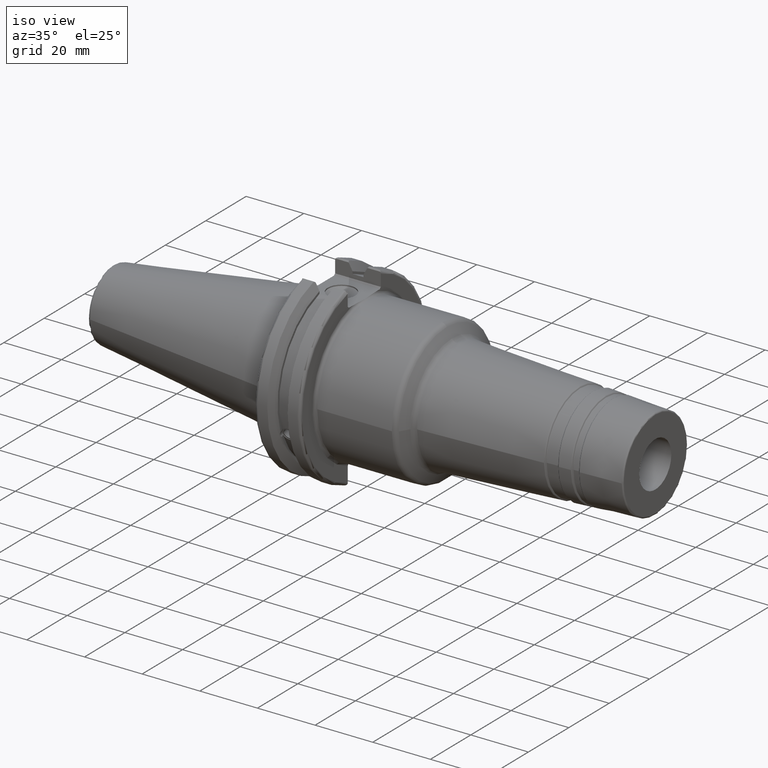
[diagram: clean part render]
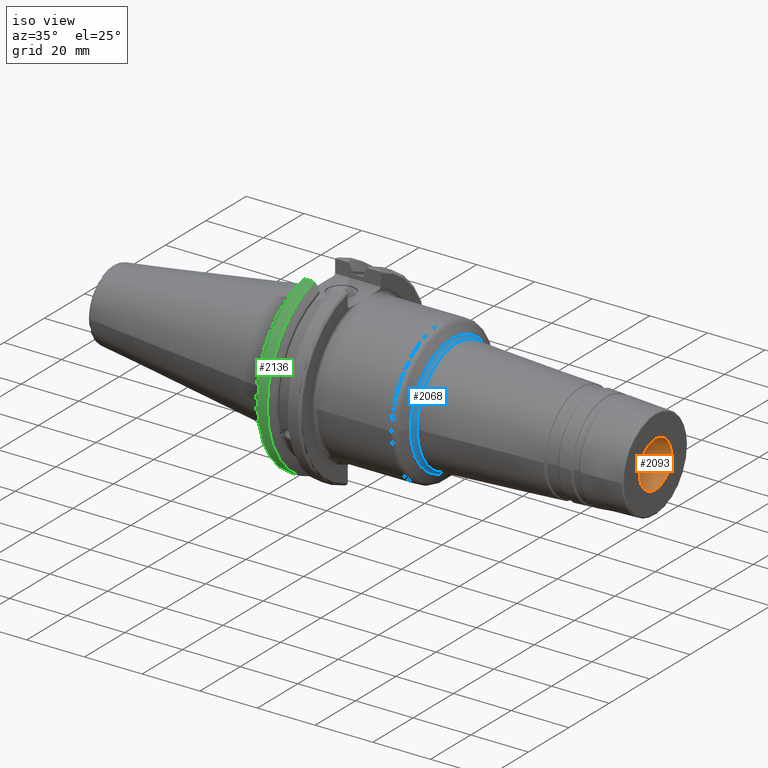
[diagram: same view with three faces highlighted in distinct colors, each labeled with its STEP entity id]
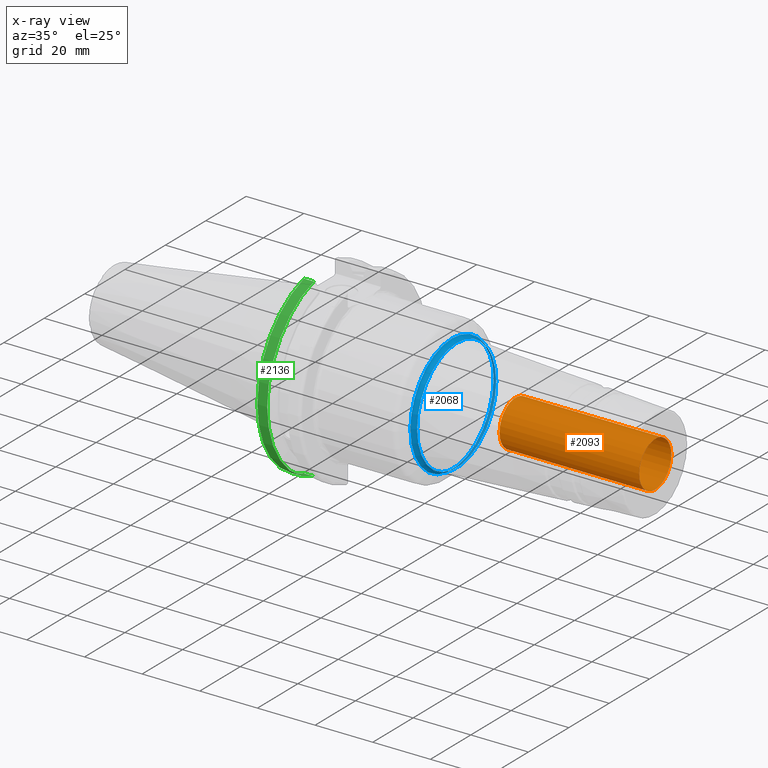
[diagram: x-ray of the same camera — body ghosted, the three highlighted faces saturated]
A machine part, iso view with three faces highlighted in distinct colors.
The next image is the same camera in x-ray (body ghosted, the three faces saturated) — at least one of them is partly hidden behind the body in this view.
Their STEP definitions:

[orange] entity #2093 — the highlighted cylindrical surface (bore or boss wall) has radius 7.9375 mm, axis along (1, 0, 0).
#156=CYLINDRICAL_SURFACE('',#2311,7.9375);
#212=FACE_OUTER_BOUND('',#321,.T.);
#321=EDGE_LOOP('',(#1584,#1585,#1586,#1587,#1588,#1589));
#433=LINE('',#3545,#532);
#532=VECTOR('',#2758,7.9375);
#643=CIRCLE('',#2237,7.9375);
#644=CIRCLE('',#2238,7.9375);
#699=CIRCLE('',#2312,7.9375);
#700=CIRCLE('',#2313,7.9375);
#819=VERTEX_POINT('',#3368);
#820=VERTEX_POINT('',#3369);
#875=VERTEX_POINT('',#3544);
#876=VERTEX_POINT('',#3546);
#1071=EDGE_CURVE('',#819,#820,#643,.T.);
#1072=EDGE_CURVE('',#820,#819,#644,.T.);
#1145=EDGE_CURVE('',#820,#875,#433,.T.);
#1146=EDGE_CURVE('',#876,#875,#699,.T.);
#1147=EDGE_CURVE('',#875,#876,#700,.T.);
#1584=ORIENTED_EDGE('',*,*,#1071,.T.);
#1585=ORIENTED_EDGE('',*,*,#1145,.T.);
#1586=ORIENTED_EDGE('',*,*,#1146,.F.);
#1587=ORIENTED_EDGE('',*,*,#1147,.F.);
#1588=ORIENTED_EDGE('',*,*,#1145,.F.);
#1589=ORIENTED_EDGE('',*,*,#1072,.T.);
#2093=ADVANCED_FACE('',(#212),#156,.F.);
#2237=AXIS2_PLACEMENT_3D('',#3370,#2593,#2594);
#2238=AXIS2_PLACEMENT_3D('',#3371,#2595,#2596);
#2311=AXIS2_PLACEMENT_3D('',#3543,#2756,#2757);
#2312=AXIS2_PLACEMENT_3D('',#3547,#2759,#2760);
#2313=AXIS2_PLACEMENT_3D('',#3548,#2761,#2762);
#2593=DIRECTION('center_axis',(1.,0.,0.));
#2594=DIRECTION('ref_axis',(0.,0.,-1.));
#2595=DIRECTION('center_axis',(1.,0.,0.));
#2596=DIRECTION('ref_axis',(0.,0.,-1.));
#2756=DIRECTION('center_axis',(1.,0.,0.));
#2757=DIRECTION('ref_axis',(0.,1.,0.));
#2758=DIRECTION('',(-1.,0.,0.));
#2759=DIRECTION('center_axis',(1.,0.,0.));
#2760=DIRECTION('ref_axis',(0.,0.,-1.));
#2761=DIRECTION('center_axis',(1.,0.,0.));
#2762=DIRECTION('ref_axis',(0.,0.,-1.));
#3368=CARTESIAN_POINT('',(120.,7.9375,0.));
#3369=CARTESIAN_POINT('',(120.,-7.9375,-9.72063396823212E-16));
#3370=CARTESIAN_POINT('Origin',(120.,0.,0.));
#3371=CARTESIAN_POINT('Origin',(120.,0.,0.));
#3543=CARTESIAN_POINT('Origin',(95.75,0.,0.));
#3544=CARTESIAN_POINT('',(71.5,-7.9375,-9.72063396823212E-16));
#3545=CARTESIAN_POINT('',(95.75,-7.9375,-9.72063396823212E-16));
#3546=CARTESIAN_POINT('',(71.5,7.9375,0.));
#3547=CARTESIAN_POINT('Origin',(71.5,0.,0.));
#3548=CARTESIAN_POINT('Origin',(71.5,0.,0.));

[blue] entity #2068 — the highlighted toroidal blend (fillet) surface has major radius 21.609 mm and minor (blend) radius 2 mm.
#85=TOROIDAL_SURFACE('',#2207,21.6089714078457,2.);
#187=FACE_OUTER_BOUND('',#295,.T.);
#295=EDGE_LOOP('',(#1394,#1395,#1396,#1397,#1398,#1399,#1400,#1401));
#620=CIRCLE('',#2208,20.6089714078457);
#621=CIRCLE('',#2209,2.);
#622=CIRCLE('',#2210,19.6117123383366);
#623=CIRCLE('',#2211,19.6117123383366);
#624=CIRCLE('',#2212,19.6117123383366);
#625=CIRCLE('',#2213,20.6089714078457);
#626=CIRCLE('',#2214,20.6089714078457);
#799=VERTEX_POINT('',#3316);
#800=VERTEX_POINT('',#3317);
#801=VERTEX_POINT('',#3319);
#802=VERTEX_POINT('',#3321);
#803=VERTEX_POINT('',#3323);
#804=VERTEX_POINT('',#3326);
#1045=EDGE_CURVE('',#799,#800,#620,.T.);
#1046=EDGE_CURVE('',#800,#801,#621,.T.);
#1047=EDGE_CURVE('',#801,#802,#622,.T.);
#1048=EDGE_CURVE('',#802,#803,#623,.T.);
#1049=EDGE_CURVE('',#803,#801,#624,.T.);
#1050=EDGE_CURVE('',#800,#804,#625,.T.);
#1051=EDGE_CURVE('',#804,#799,#626,.T.);
#1394=ORIENTED_EDGE('',*,*,#1045,.T.);
#1395=ORIENTED_EDGE('',*,*,#1046,.T.);
#1396=ORIENTED_EDGE('',*,*,#1047,.T.);
#1397=ORIENTED_EDGE('',*,*,#1048,.T.);
#1398=ORIENTED_EDGE('',*,*,#1049,.T.);
#1399=ORIENTED_EDGE('',*,*,#1046,.F.);
#1400=ORIENTED_EDGE('',*,*,#1050,.T.);
#1401=ORIENTED_EDGE('',*,*,#1051,.T.);
#2068=ADVANCED_FACE('',(#187),#85,.F.);
#2207=AXIS2_PLACEMENT_3D('',#3315,#2530,#2531);
#2208=AXIS2_PLACEMENT_3D('',#3318,#2532,#2533);
#2209=AXIS2_PLACEMENT_3D('',#3320,#2534,#2535);
#2210=AXIS2_PLACEMENT_3D('',#3322,#2536,#2537);
#2211=AXIS2_PLACEMENT_3D('',#3324,#2538,#2539);
#2212=AXIS2_PLACEMENT_3D('',#3325,#2540,#2541);
#2213=AXIS2_PLACEMENT_3D('',#3327,#2542,#2543);
#2214=AXIS2_PLACEMENT_3D('',#3328,#2544,#2545);
#2530=DIRECTION('center_axis',(1.,0.,0.));
#2531=DIRECTION('ref_axis',(0.,0.,-1.));
#2532=DIRECTION('center_axis',(1.,0.,0.));
#2533=DIRECTION('ref_axis',(0.,-1.,3.06161699786838E-17));
#2534=DIRECTION('center_axis',(0.,-1.,-1.22464679914735E-16));
#2535=DIRECTION('ref_axis',(0.,-1.22464679914735E-16,1.));
#2536=DIRECTION('center_axis',(-1.,0.,0.));
#2537=DIRECTION('ref_axis',(0.,-1.,3.06161699786838E-17));
#2538=DIRECTION('center_axis',(-1.,0.,0.));
#2539=DIRECTION('ref_axis',(0.,-1.,3.06161699786838E-17));
#2540=DIRECTION('center_axis',(-1.,0.,0.));
#2541=DIRECTION('ref_axis',(0.,-1.,3.06161699786838E-17));
#2542=DIRECTION('center_axis',(1.,0.,0.));
#2543=DIRECTION('ref_axis',(0.,-1.,3.06161699786838E-17));
#2544=DIRECTION('center_axis',(1.,0.,0.));
#2545=DIRECTION('ref_axis',(0.,-1.,3.06161699786838E-17));
#3315=CARTESIAN_POINT('Origin',(51.1890951079304,0.,0.));
#3316=CARTESIAN_POINT('',(49.4570443003616,20.6089714078457,-1.26193554341688E-15));
#3317=CARTESIAN_POINT('',(49.4570443003616,-2.52387108683376E-15,20.6089714078457));
#3318=CARTESIAN_POINT('Origin',(49.4570443003616,0.,-3.1548388585422E-15));
#3319=CARTESIAN_POINT('',(51.0844231954446,-2.40174207409426E-15,19.6117123383366));
#3320=CARTESIAN_POINT('Origin',(51.1890951079304,-2.6463357667485E-15,21.6089714078457));
#3321=CARTESIAN_POINT('',(51.0844231954446,19.6117123383366,-6.00435518523564E-15));
#3322=CARTESIAN_POINT('Origin',(51.0844231954446,0.,-3.00217759261782E-15));
#3323=CARTESIAN_POINT('',(51.0844231954446,-19.6117123383366,-2.40174207409426E-15));
#3324=CARTESIAN_POINT('Origin',(51.0844231954446,0.,-3.00217759261782E-15));
#3325=CARTESIAN_POINT('Origin',(51.0844231954446,0.,-3.00217759261782E-15));
#3326=CARTESIAN_POINT('',(49.4570443003616,-20.6089714078457,-2.52387108683376E-15));
#3327=CARTESIAN_POINT('Origin',(49.4570443003616,0.,-3.1548388585422E-15));
#3328=CARTESIAN_POINT('Origin',(49.4570443003616,0.,-3.1548388585422E-15));

[green] entity #2136 — the highlighted cylindrical surface (partial cylindrical patch) has radius 31.75 mm, axis along (1, 0, 0).
#174=CYLINDRICAL_SURFACE('',#2426,31.75);
#255=FACE_OUTER_BOUND('',#373,.T.);
#373=EDGE_LOOP('',(#1873,#1874,#1875,#1876));
#487=LINE('',#4075,#586);
#488=LINE('',#4081,#587);
#586=VECTOR('',#3040,10.);
#587=VECTOR('',#3043,10.);
#752=CIRCLE('',#2424,31.75);
#753=CIRCLE('',#2427,31.75);
#991=VERTEX_POINT('',#4054);
#992=VERTEX_POINT('',#4063);
#993=VERTEX_POINT('',#4074);
#994=VERTEX_POINT('',#4080);
#1304=EDGE_CURVE('',#991,#992,#752,.T.);
#1306=EDGE_CURVE('',#992,#993,#487,.T.);
#1308=EDGE_CURVE('',#994,#991,#488,.T.);
#1309=EDGE_CURVE('',#993,#994,#753,.T.);
#1873=ORIENTED_EDGE('',*,*,#1304,.F.);
#1874=ORIENTED_EDGE('',*,*,#1308,.F.);
#1875=ORIENTED_EDGE('',*,*,#1309,.F.);
#1876=ORIENTED_EDGE('',*,*,#1306,.F.);
#2136=ADVANCED_FACE('',(#255),#174,.T.);
#2424=AXIS2_PLACEMENT_3D('',#4064,#3036,#3037);
#2426=AXIS2_PLACEMENT_3D('',#4079,#3041,#3042);
#2427=AXIS2_PLACEMENT_3D('',#4082,#3044,#3045);
#3036=DIRECTION('center_axis',(-1.,0.,0.));
#3037=DIRECTION('ref_axis',(0.,-1.,1.60812264967664E-16));
#3040=DIRECTION('',(1.,0.,0.));
#3041=DIRECTION('center_axis',(1.,0.,0.));
#3042=DIRECTION('ref_axis',(0.,-1.,1.22464679914735E-16));
#3043=DIRECTION('',(-1.,0.,0.));
#3044=DIRECTION('center_axis',(1.,0.,0.));
#3045=DIRECTION('ref_axis',(0.,0.,-1.));
#4054=CARTESIAN_POINT('',(4.175,-8.67204822802685,-30.5427254764662));
#4063=CARTESIAN_POINT('',(4.175,-8.67204822802685,30.5427254764662));
#4064=CARTESIAN_POINT('Origin',(4.175,0.,0.));
#4074=CARTESIAN_POINT('',(7.60793323092436,-8.67204822802685,30.5427254764662));
#4075=CARTESIAN_POINT('',(5.39146661546218,-8.67204822802685,30.5427254764662));
#4079=CARTESIAN_POINT('Origin',(5.39146661546218,0.,0.));
#4080=CARTESIAN_POINT('',(7.60793323092436,-8.67204822802685,-30.5427254764662));
#4081=CARTESIAN_POINT('',(5.39146661546218,-8.67204822802685,-30.5427254764662));
#4082=CARTESIAN_POINT('Origin',(7.60793323092436,0.,0.));